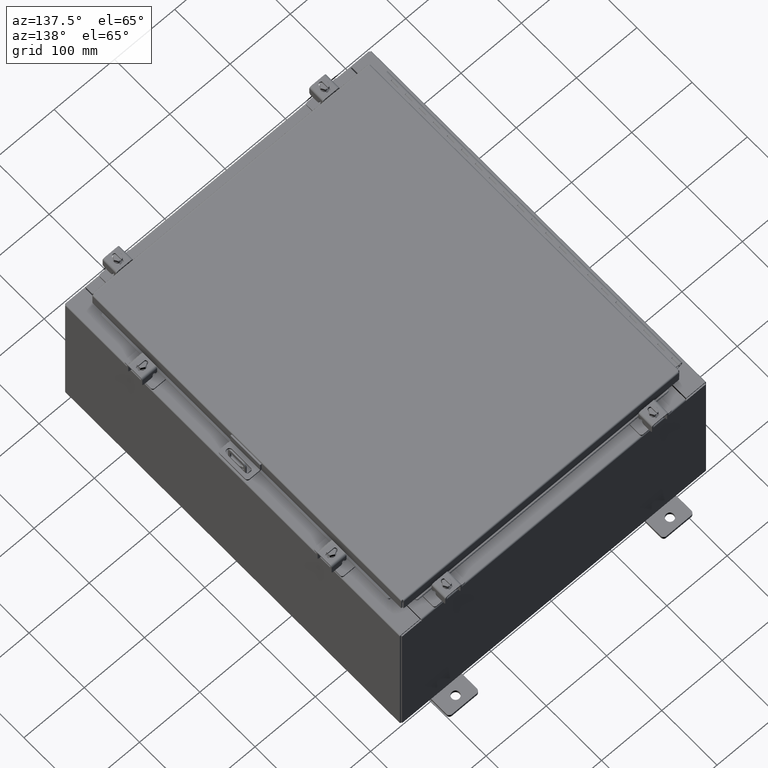
[diagram: clean part render]
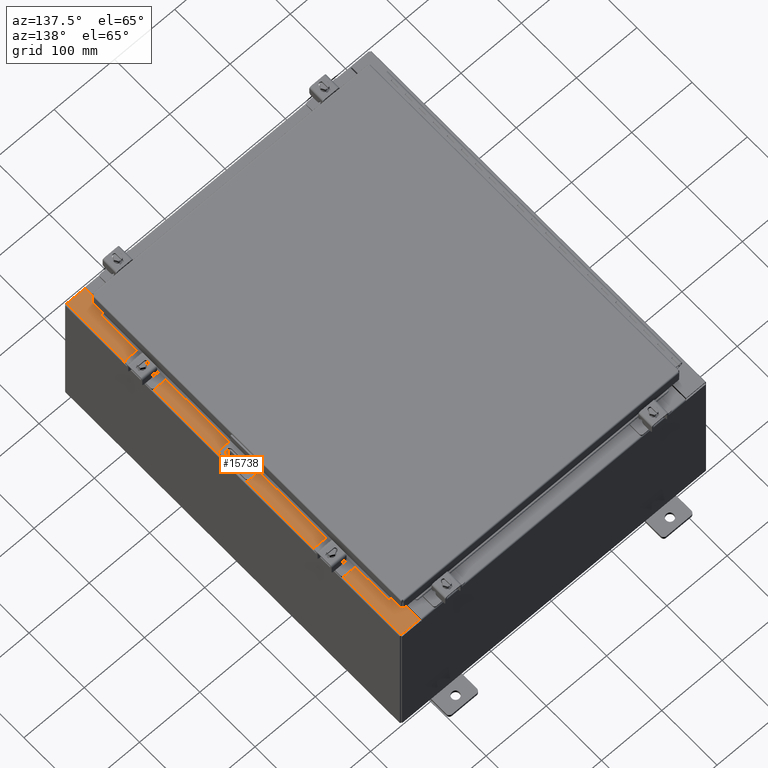
[diagram: same view with one face highlighted and labeled with its STEP entity id]
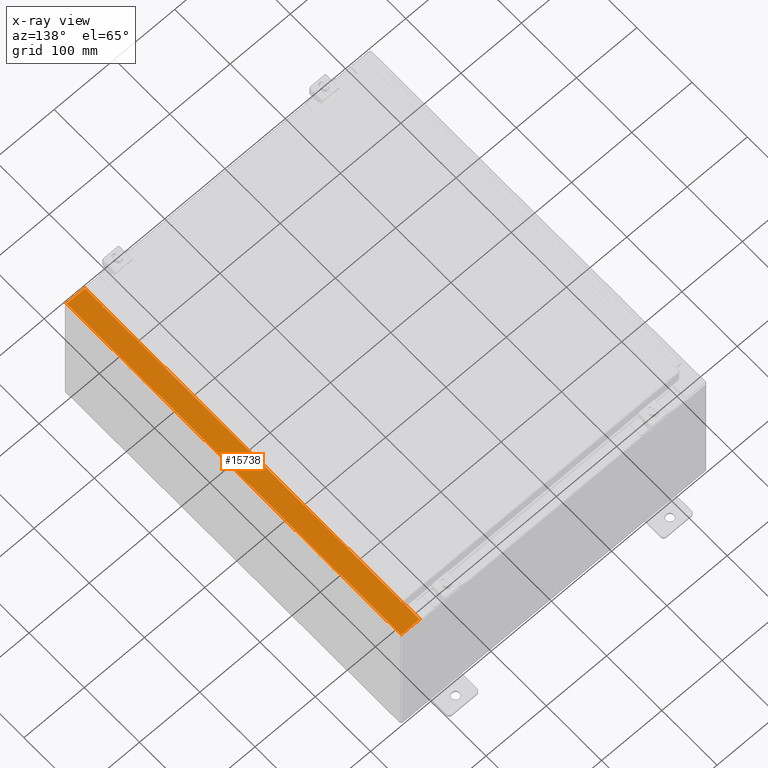
[diagram: x-ray of the same camera — body ghosted, the highlighted face saturated]
A machine part, auxiliary view. The second image highlights one B-rep face of the part: STEP entity #15738.
The next image is the same camera in x-ray: the body ghosted, the highlighted face saturated — about 0% of this face is hidden behind the body in this view.
In plain terms, the highlighted planar face has unit normal (-0, 0, -1).
Its self-contained STEP definition (entity closure, byte-faithful):
#367 = CARTESIAN_POINT ( 'NONE',  ( 8.699700000000035500, 11.92529999999999600, 9.925300000000008900 ) ) ;
#749 = LINE ( 'NONE', #20030, #13261 ) ;
#1663 = ORIENTED_EDGE ( 'NONE', *, *, #14869, .T. ) ;
#1811 = DIRECTION ( 'NONE',  ( 1.000000000000000000, 0.0000000000000000000, 0.0000000000000000000 ) ) ;
#1863 = CARTESIAN_POINT ( 'NONE',  ( 9.912300000000035600, 11.92529999999999800, 9.925300000000001800 ) ) ;
#1893 = VERTEX_POINT ( 'NONE', #15305 ) ;
#2047 = CARTESIAN_POINT ( 'NONE',  ( 8.750050000000037200, 10.63109999999999500, 9.925300000000007100 ) ) ;
#2165 = ORIENTED_EDGE ( 'NONE', *, *, #23607, .F. ) ;
#2351 = VECTOR ( 'NONE', #14171, 39.37007874015748100 ) ;
#2870 = AXIS2_PLACEMENT_3D ( 'NONE', #3425, #20879, #5915 ) ;
#2923 = VERTEX_POINT ( 'NONE', #367 ) ;
#2976 = CARTESIAN_POINT ( 'NONE',  ( 8.750050000000037200, -10.59374999999999800, 9.925300000000008900 ) ) ;
#3040 = ORIENTED_EDGE ( 'NONE', *, *, #27739, .F. ) ;
#3185 = ORIENTED_EDGE ( 'NONE', *, *, #7870, .T. ) ;
#3425 = CARTESIAN_POINT ( 'NONE',  ( 8.750050000000037200, 10.61242499999999500, 9.925300000000007100 ) ) ;
#3806 = EDGE_CURVE ( 'NONE', #5113, #7110, #11042, .T. ) ;
#4215 = VECTOR ( 'NONE', #12945, 39.37007874015748100 ) ;
#4928 = VECTOR ( 'NONE', #31083, 39.37007874015748100 ) ;
#5113 = VERTEX_POINT ( 'NONE', #1863 ) ;
#5565 = EDGE_CURVE ( 'NONE', #10401, #29650, #8966, .T. ) ;
#5745 = CARTESIAN_POINT ( 'NONE',  ( 5.335691853495948400E-014, 11.92529999999999800, 9.925300000000055100 ) ) ;
#5776 = LINE ( 'NONE', #14264, #18319 ) ;
#5915 = DIRECTION ( 'NONE',  ( 1.000000000000000000, 0.0000000000000000000, 0.0000000000000000000 ) ) ;
#6568 = CARTESIAN_POINT ( 'NONE',  ( 5.335691853495948400E-014, 0.0000000000000000000, 9.925300000000055100 ) ) ;
#6927 = VECTOR ( 'NONE', #8236, 39.37007874015748100 ) ;
#7110 = VERTEX_POINT ( 'NONE', #27579 ) ;
#7507 = DIRECTION ( 'NONE',  ( 5.349571789159783800E-015, 0.0000000000000000000, 1.000000000000000000 ) ) ;
#7796 = ORIENTED_EDGE ( 'NONE', *, *, #3806, .F. ) ;
#7870 = EDGE_CURVE ( 'NONE', #13323, #7110, #31650, .T. ) ;
#7941 = VERTEX_POINT ( 'NONE', #25780 ) ;
#8236 = DIRECTION ( 'NONE',  ( -1.000000000000000000, 8.758115402030108600E-047, 5.349571789159784600E-015 ) ) ;
#8562 = LINE ( 'NONE', #30792, #21092 ) ;
#8576 = LINE ( 'NONE', #14115, #26224 ) ;
#8913 = ORIENTED_EDGE ( 'NONE', *, *, #18335, .F. ) ;
#8966 = LINE ( 'NONE', #21603, #2351 ) ;
#10401 = VERTEX_POINT ( 'NONE', #28825 ) ;
#10425 = CARTESIAN_POINT ( 'NONE',  ( 5.335691853495948400E-014, -11.92530000000000000, 9.925300000000055100 ) ) ;
#10875 = EDGE_CURVE ( 'NONE', #7941, #11715, #20594, .T. ) ;
#11035 = CARTESIAN_POINT ( 'NONE',  ( 8.750050000000037200, 10.63109999999999500, 9.925300000000008900 ) ) ;
#11042 = LINE ( 'NONE', #11778, #23563 ) ;
#11489 = EDGE_CURVE ( 'NONE', #19971, #32411, #18228, .T. ) ;
#11715 = VERTEX_POINT ( 'NONE', #11035 ) ;
#11778 = CARTESIAN_POINT ( 'NONE',  ( 9.912300000000035600, -11.92530000000000000, 9.925300000000001800 ) ) ;
#12945 = DIRECTION ( 'NONE',  ( 1.000000000000000000, 1.633973368572597200E-031, -5.349571789159784600E-015 ) ) ;
#13221 = DIRECTION ( 'NONE',  ( -1.000000000000000000, 0.0000000000000000000, 0.0000000000000000000 ) ) ;
#13261 = VECTOR ( 'NONE', #14981, 39.37007874015748100 ) ;
#13323 = VERTEX_POINT ( 'NONE', #27488 ) ;
#14104 = PLANE ( 'NONE',  #18484 ) ;
#14115 = CARTESIAN_POINT ( 'NONE',  ( 8.699700000000035500, -5.591807081111829600E-030, 9.925300000000008900 ) ) ;
#14171 = DIRECTION ( 'NONE',  ( -0.0000000000000000000, 1.000000000000000000, -0.0000000000000000000 ) ) ;
#14264 = CARTESIAN_POINT ( 'NONE',  ( 8.712700000000035400, 10.59374999999999600, 9.925300000000007100 ) ) ;
#14284 = DIRECTION ( 'NONE',  ( -0.0000000000000000000, -1.000000000000000000, -0.0000000000000000000 ) ) ;
#14392 = EDGE_LOOP ( 'NONE', ( #15848, #20481, #3185, #7796, #1663, #23508, #17216, #17869, #2165, #25447, #8913, #3040 ) ) ;
#14869 = EDGE_CURVE ( 'NONE', #5113, #2923, #31809, .T. ) ;
#14981 = DIRECTION ( 'NONE',  ( -6.427586101948161900E-031, -1.000000000000000000, 3.438483328337737900E-045 ) ) ;
#15305 = CARTESIAN_POINT ( 'NONE',  ( 8.699700000000035500, 10.63109999999999600, 9.925300000000008900 ) ) ;
#15738 = ADVANCED_FACE ( 'NONE', ( #31885 ), #14104, .F. ) ;
#15848 = ORIENTED_EDGE ( 'NONE', *, *, #11489, .F. ) ;
#16620 = DIRECTION ( 'NONE',  ( -1.000000000000000000, 0.0000000000000000000, 5.349571789159783800E-015 ) ) ;
#17030 = DIRECTION ( 'NONE',  ( -1.000000000000000000, 4.340572780399910900E-014, 0.0000000000000000000 ) ) ;
#17216 = ORIENTED_EDGE ( 'NONE', *, *, #32339, .F. ) ;
#17869 = ORIENTED_EDGE ( 'NONE', *, *, #10875, .F. ) ;
#18228 = LINE ( 'NONE', #28557, #4928 ) ;
#18260 = VERTEX_POINT ( 'NONE', #2976 ) ;
#18319 = VECTOR ( 'NONE', #1811, 39.37007874015748100 ) ;
#18335 = EDGE_CURVE ( 'NONE', #18260, #10401, #8562, .T. ) ;
#18484 = AXIS2_PLACEMENT_3D ( 'NONE', #6568, #31676, #16620 ) ;
#18628 = DIRECTION ( 'NONE',  ( -6.427586101948161900E-031, -1.000000000000000000, 3.438483328337737900E-045 ) ) ;
#19663 = LINE ( 'NONE', #2047, #32229 ) ;
#19971 = VERTEX_POINT ( 'NONE', #26850 ) ;
#20030 = CARTESIAN_POINT ( 'NONE',  ( 8.699700000000035500, -5.591807081111829600E-030, 9.925300000000008900 ) ) ;
#20481 = ORIENTED_EDGE ( 'NONE', *, *, #22576, .T. ) ;
#20594 = CIRCLE ( 'NONE', #2870, 0.01867499999999949400 ) ;
#20879 = DIRECTION ( 'NONE',  ( 5.349571789159783800E-015, 0.0000000000000000000, 1.000000000000000000 ) ) ;
#21092 = VECTOR ( 'NONE', #13221, 39.37007874015748100 ) ;
#21603 = CARTESIAN_POINT ( 'NONE',  ( 8.712700000000035400, -10.59375000000000000, 9.925300000000007100 ) ) ;
#22271 = CARTESIAN_POINT ( 'NONE',  ( 8.750050000000037200, -10.63109999999999600, 9.925300000000008900 ) ) ;
#22335 = EDGE_CURVE ( 'NONE', #2923, #1893, #8576, .T. ) ;
#22482 = CARTESIAN_POINT ( 'NONE',  ( 8.750050000000037200, -10.61242499999999800, 9.925300000000007100 ) ) ;
#22576 = EDGE_CURVE ( 'NONE', #19971, #13323, #749, .T. ) ;
#23508 = ORIENTED_EDGE ( 'NONE', *, *, #22335, .T. ) ;
#23563 = VECTOR ( 'NONE', #14284, 39.37007874015748100 ) ;
#23607 = EDGE_CURVE ( 'NONE', #29650, #7941, #5776, .T. ) ;
#24332 = CARTESIAN_POINT ( 'NONE',  ( 8.712700000000035400, 10.59374999999999600, 9.925300000000007100 ) ) ;
#25027 = DIRECTION ( 'NONE',  ( 1.000000000000000000, 0.0000000000000000000, 0.0000000000000000000 ) ) ;
#25447 = ORIENTED_EDGE ( 'NONE', *, *, #5565, .F. ) ;
#25780 = CARTESIAN_POINT ( 'NONE',  ( 8.750050000000037200, 10.59374999999999600, 9.925300000000008900 ) ) ;
#26224 = VECTOR ( 'NONE', #18628, 39.37007874015748100 ) ;
#26850 = CARTESIAN_POINT ( 'NONE',  ( 8.699700000000035500, -10.63109999999999600, 9.925300000000008900 ) ) ;
#27488 = CARTESIAN_POINT ( 'NONE',  ( 8.699700000000035500, -11.92530000000000000, 9.925300000000008900 ) ) ;
#27579 = CARTESIAN_POINT ( 'NONE',  ( 9.912300000000035600, -11.92530000000000000, 9.925300000000001800 ) ) ;
#27739 = EDGE_CURVE ( 'NONE', #32411, #18260, #30293, .T. ) ;
#28557 = CARTESIAN_POINT ( 'NONE',  ( 8.699700000000035500, -10.63109999999999600, 9.925300000000007100 ) ) ;
#28825 = CARTESIAN_POINT ( 'NONE',  ( 8.712700000000035400, -10.59374999999999800, 9.925300000000007100 ) ) ;
#29650 = VERTEX_POINT ( 'NONE', #24332 ) ;
#30293 = CIRCLE ( 'NONE', #31168, 0.01867499999999949400 ) ;
#30792 = CARTESIAN_POINT ( 'NONE',  ( 8.750050000000037200, -10.59374999999999800, 9.925300000000007100 ) ) ;
#31083 = DIRECTION ( 'NONE',  ( 1.000000000000000000, 0.0000000000000000000, 0.0000000000000000000 ) ) ;
#31168 = AXIS2_PLACEMENT_3D ( 'NONE', #22482, #7507, #25027 ) ;
#31650 = LINE ( 'NONE', #10425, #4215 ) ;
#31676 = DIRECTION ( 'NONE',  ( -5.349571789159783800E-015, 0.0000000000000000000, -1.000000000000000000 ) ) ;
#31809 = LINE ( 'NONE', #5745, #6927 ) ;
#31885 = FACE_OUTER_BOUND ( 'NONE', #14392, .T. ) ;
#32229 = VECTOR ( 'NONE', #17030, 39.37007874015748100 ) ;
#32339 = EDGE_CURVE ( 'NONE', #11715, #1893, #19663, .T. ) ;
#32411 = VERTEX_POINT ( 'NONE', #22271 ) ;